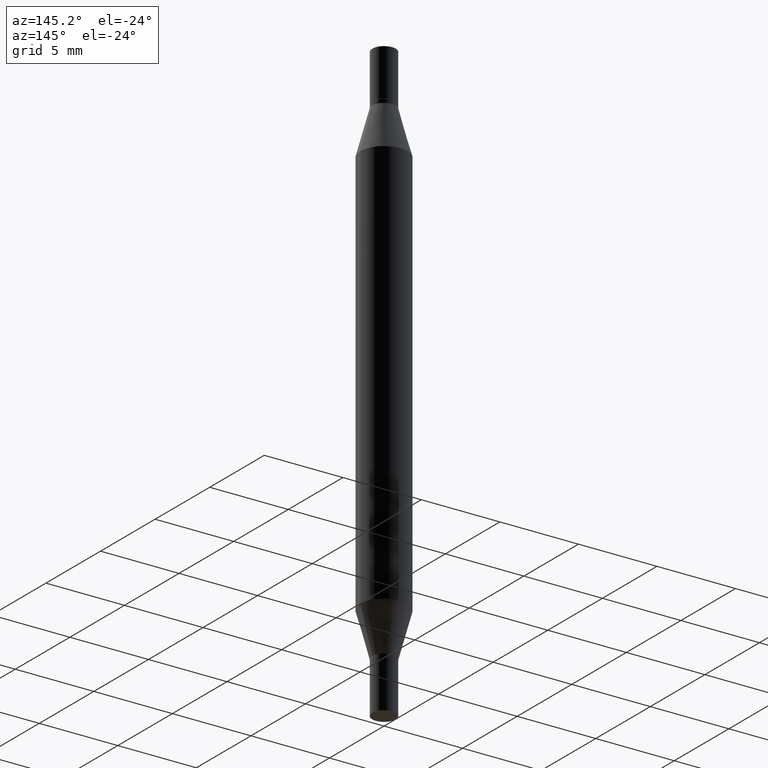
[diagram: clean part render]
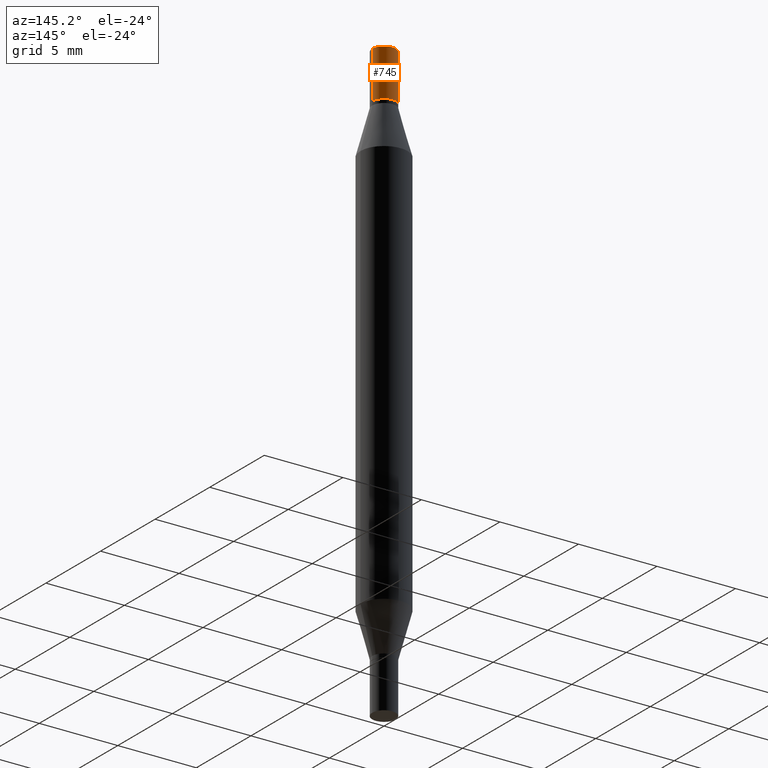
[diagram: same view with one face highlighted and labeled with its STEP entity id]
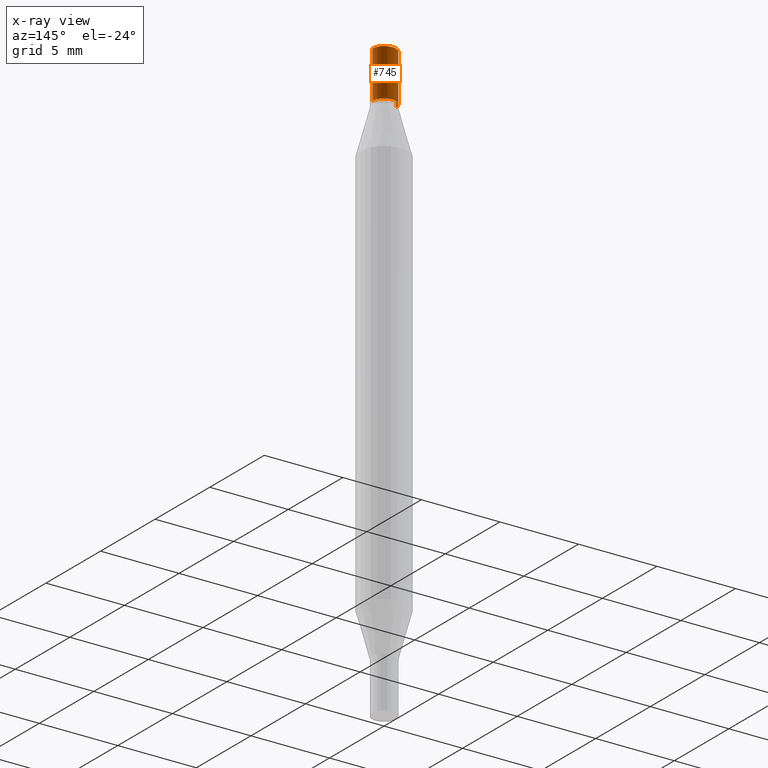
[diagram: x-ray of the same camera — body ghosted, the highlighted face saturated]
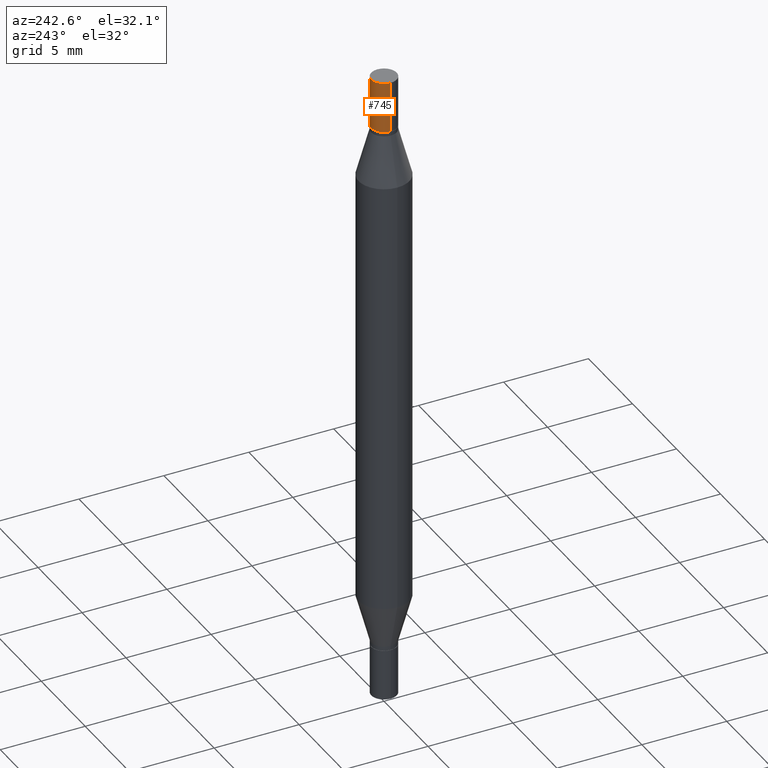
[diagram: same view with one face highlighted and labeled with its STEP entity id]
A machine part, auxiliary view. The second image highlights one B-rep face of the part: STEP entity #745.
The next image is the same camera in x-ray: the body ghosted, the highlighted face saturated — about 0% of this face is hidden behind the body in this view.
A second angle (auxiliary view) of the same face is appended — the face is thin or edge-on in the first view.
In plain terms, the highlighted cylindrical surface (edge-blend (fillet) strip) has radius 0.7506 mm, axis along (-0, -0, -1).
Its self-contained STEP definition (entity closure, byte-faithful):
#43 = CARTESIAN_POINT ( 'NONE',  ( -0.02954999999999999988, -3.221189259251762717E-18, 7.347294627798473966E-31 ) ) ;
#55 = VERTEX_POINT ( 'NONE', #257 ) ;
#57 = CIRCLE ( 'NONE', #167, 0.02954999999999999988 ) ;
#92 = EDGE_CURVE ( 'NONE', #516, #444, #416, .T. ) ;
#100 = CARTESIAN_POINT ( 'NONE',  ( -0.02954999999999999988, -5.021119700973134755E-15, -1.496099999999999985 ) ) ;
#142 = ORIENTED_EDGE ( 'NONE', *, *, #92, .F. ) ;
#149 = CIRCLE ( 'NONE', #209, 0.02954999999999999988 ) ;
#167 = AXIS2_PLACEMENT_3D ( 'NONE', #192, #361, #506 ) ;
#192 = CARTESIAN_POINT ( 'NONE',  ( 3.369856014923117948E-29, -4.121399959508538653E-16, -0.1181000000000000383 ) ) ;
#208 = CARTESIAN_POINT ( 'NONE',  ( 0.02954999999999999988, -5.430193963932912651E-15, -1.496099999999999985 ) ) ;
#209 = AXIS2_PLACEMENT_3D ( 'NONE', #570, #503, #809 ) ;
#239 = ORIENTED_EDGE ( 'NONE', *, *, #873, .F. ) ;
#257 = CARTESIAN_POINT ( 'NONE',  ( 0.02954999999999999988, -2.061043613615753919E-16, 6.680595706058740339E-35 ) ) ;
#337 = DIRECTION ( 'NONE',  ( -2.445468806185136597E-29, -3.491805094961124077E-15, -1.000000000000000000 ) ) ;
#349 = CARTESIAN_POINT ( 'NONE',  ( -0.02954999999999999988, -3.221189259251762717E-18, -0.1181000000000000383 ) ) ;
#361 = DIRECTION ( 'NONE',  ( 2.445468806185136597E-29, 3.491805094961124077E-15, 1.000000000000000000 ) ) ;
#416 = LINE ( 'NONE', #100, #859 ) ;
#430 = VERTEX_POINT ( 'NONE', #839 ) ;
#444 = VERTEX_POINT ( 'NONE', #349 ) ;
#503 = DIRECTION ( 'NONE',  ( 2.445468806185136597E-29, 3.491805094961124077E-15, 1.000000000000000000 ) ) ;
#506 = DIRECTION ( 'NONE',  ( 1.000000000000000000, -6.982962677686265922E-15, 0.000000000000000000 ) ) ;
#511 = EDGE_CURVE ( 'NONE', #55, #430, #555, .T. ) ;
#516 = VERTEX_POINT ( 'NONE', #43 ) ;
#547 = EDGE_CURVE ( 'NONE', #430, #444, #57, .T. ) ;
#555 = LINE ( 'NONE', #208, #846 ) ;
#570 = CARTESIAN_POINT ( 'NONE',  ( 3.658665880933582389E-29, 2.421857640538043390E-19, 0.000000000000000000 ) ) ;
#675 = EDGE_LOOP ( 'NONE', ( #142, #239, #967, #762 ) ) ;
#745 = ADVANCED_FACE ( 'NONE', ( #923 ), #784, .T. ) ;
#762 = ORIENTED_EDGE ( 'NONE', *, *, #547, .T. ) ;
#784 = CYLINDRICAL_SURFACE ( 'NONE', #878, 0.02954999999999999988 ) ;
#799 = DIRECTION ( 'NONE',  ( -2.445468806185136877E-29, -3.491805094961123683E-15, -1.000000000000000000 ) ) ;
#809 = DIRECTION ( 'NONE',  ( 1.000000000000000000, -6.982962677686266711E-15, 2.260776888683160832E-33 ) ) ;
#839 = CARTESIAN_POINT ( 'NONE',  ( 0.02954999999999999988, -6.184865430764830320E-16, -0.1181000000000000383 ) ) ;
#846 = VECTOR ( 'NONE', #948, 39.37007874015748143 ) ;
#847 = CARTESIAN_POINT ( 'NONE',  ( 0.000000000000000000, -5.223847416807283040E-15, -1.496099999999999985 ) ) ;
#859 = VECTOR ( 'NONE', #799, 39.37007874015748143 ) ;
#873 = EDGE_CURVE ( 'NONE', #55, #516, #149, .T. ) ;
#878 = AXIS2_PLACEMENT_3D ( 'NONE', #847, #337, #914 ) ;
#914 = DIRECTION ( 'NONE',  ( 1.000000000000000000, -6.982962677686261977E-15, 0.000000000000000000 ) ) ;
#923 = FACE_OUTER_BOUND ( 'NONE', #675, .T. ) ;
#948 = DIRECTION ( 'NONE',  ( -2.445468806185136877E-29, -3.491805094961123683E-15, -1.000000000000000000 ) ) ;
#967 = ORIENTED_EDGE ( 'NONE', *, *, #511, .T. ) ;